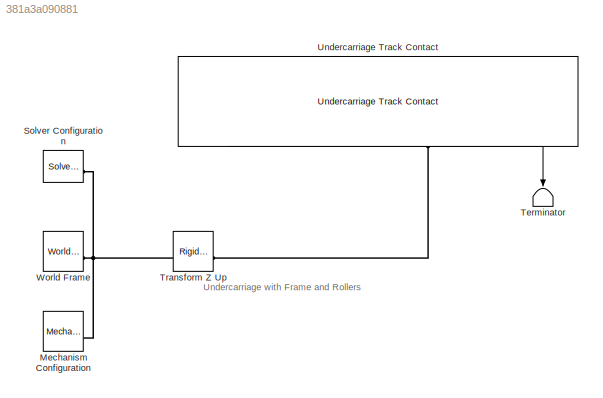
MODEL slx_381a3a090881
KIND model
CONFIG AbsTol = 1e-3
CONFIG EnableMultiTasking = on
CONFIG SolverName = VariableStepAuto
BLOCK [Reference] Mechanism Configuration  REF=sm_lib/Utilities/Mechanism
Configuration
  SourceBlock = sm_lib/Utilities/Mechanism\nConfiguration
  SourceType = Mechanism\nConfiguration
BLOCK [Reference] Solver Configuration  REF=nesl_utility/Solver
Configuration
  SourceBlock = nesl_utility/Solver\nConfiguration
  SourceType = Solver\nConfiguration
BLOCK [Terminator] Terminator
  NameLocation = left
BLOCK [Reference] Transform Z Up  REF=sm_lib/Frames and
Transforms/Rigid
Transform
  SourceBlock = sm_lib/Frames and\nTransforms/Rigid\nTransform
  SourceType = Rigid\nTransform
BLOCK [Reference] Undercarriage Track Contact  REF=sm_trackV_lib_chain_underc_i1u2l7/Undercarriage
Track Contact
  NameLocation = left
  SourceBlock = sm_trackV_lib_chain_underc_i1u2l7/Undercarriage\nTrack Contact
  SourceType = Undercarriage for Integration with Track Model
BLOCK [Reference] World Frame  REF=sm_lib/Frames and
Transforms/World Frame
  SourceBlock = sm_lib/Frames and\nTransforms/World Frame
  SourceType = World Frame
ANNOTATION (root): Undercarriage with Frame and Rollers
LINE Undercarriage Track Contact:1 -> Terminator:1
PNET net1: Mechanism Configuration:RConn1 -- Solver Configuration:RConn1 -- Transform Z Up:LConn1 -- World Frame:RConn1
PLINE Transform Z Up:RConn1 -- Undercarriage Track Contact:RConn4
note: PNET lines group multi-terminal physical nets as a canonical sorted terminal list (undirected conserving connections); 2-terminal nets keep the pairwise PLINE form
